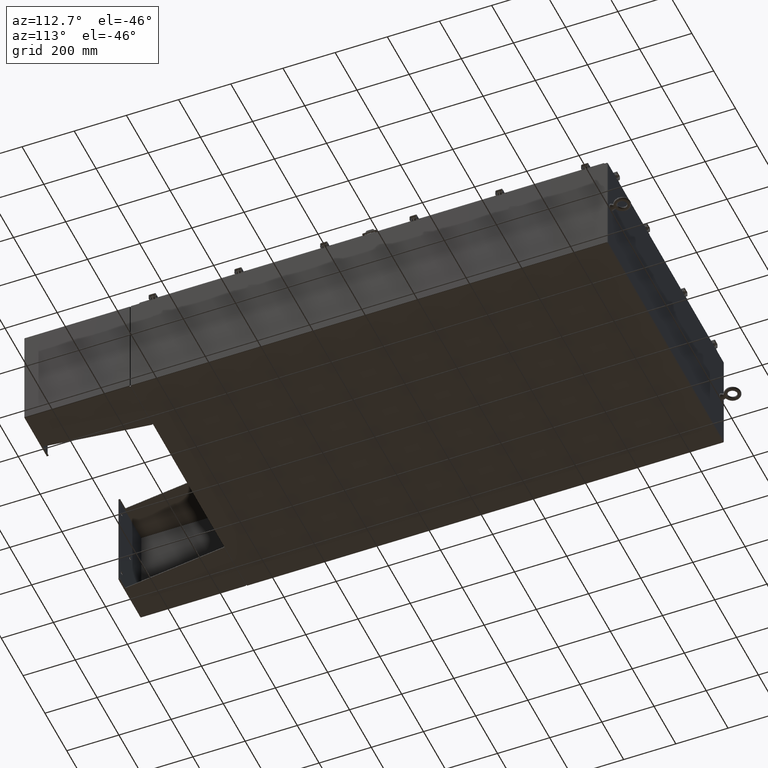
[diagram: clean part render]
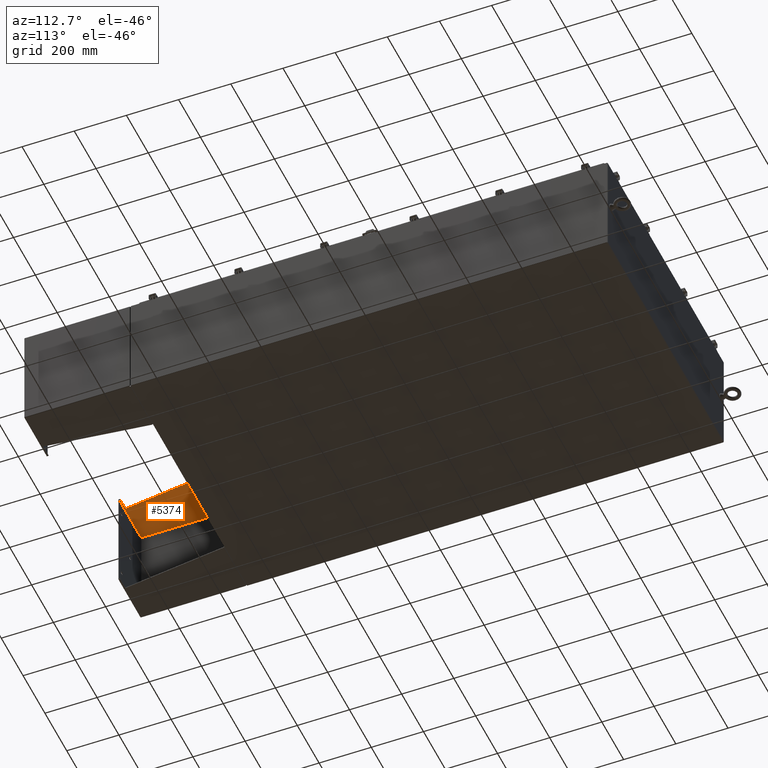
[diagram: same view with one face highlighted and labeled with its STEP entity id]
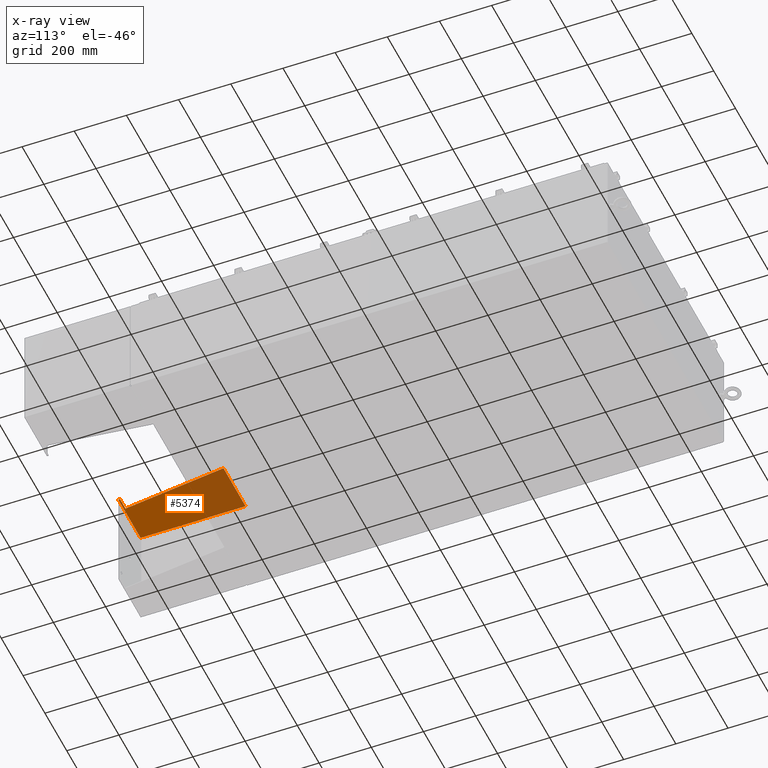
[diagram: x-ray of the same camera — body ghosted, the highlighted face saturated]
A machine part, auxiliary view. The second image highlights one B-rep face of the part: STEP entity #5374.
The next image is the same camera in x-ray: the body ghosted, the highlighted face saturated — about 39% of this face is hidden behind the body in this view.
In plain terms, the highlighted planar face has unit normal (0, 0, -1).
Its self-contained STEP definition (entity closure, byte-faithful):
#2541 = EDGE_CURVE ( 'NONE', #25758, #55545, #8168, .T. ) ;
#2879 = ORIENTED_EDGE ( 'NONE', *, *, #35555, .F. ) ;
#5002 = EDGE_CURVE ( 'NONE', #62351, #36386, #75277, .T. ) ;
#5018 = VECTOR ( 'NONE', #65932, 39.37007874015748100 ) ;
#5374 = ADVANCED_FACE ( 'NONE', ( #33627 ), #19703, .T. ) ;
#5492 = CARTESIAN_POINT ( 'NONE',  ( -7.896000000000027400, 8.000000000000001800, 8.000999999999999400 ) ) ;
#5958 = DIRECTION ( 'NONE',  ( 0.0000000000000000000, 0.0000000000000000000, -1.000000000000000000 ) ) ;
#8168 = LINE ( 'NONE', #18551, #55104 ) ;
#8874 = EDGE_CURVE ( 'NONE', #57874, #25758, #34024, .T. ) ;
#9083 = EDGE_LOOP ( 'NONE', ( #44848, #2879, #12506, #33434, #36473, #23579 ) ) ;
#10622 = VECTOR ( 'NONE', #57680, 39.37007874015748100 ) ;
#12506 = ORIENTED_EDGE ( 'NONE', *, *, #5002, .F. ) ;
#15303 = DIRECTION ( 'NONE',  ( -4.399772607369800400E-016, 0.9922942345449394800, 0.1239038017531047900 ) ) ;
#18141 = CARTESIAN_POINT ( 'NONE',  ( -7.896000000000013200, 7.857000000000001100, 8.000999999999999400 ) ) ;
#18551 = CARTESIAN_POINT ( 'NONE',  ( -7.896000000000013200, 7.857000000000001100, 8.000999999999999400 ) ) ;
#19703 = PLANE ( 'NONE',  #44209 ) ;
#22666 = CARTESIAN_POINT ( 'NONE',  ( -7.896000000000019400, -7.749999999999999100, 6.052216497445928500 ) ) ;
#23413 = CARTESIAN_POINT ( 'NONE',  ( -7.895999999999998100, -7.999999999999999100, 0.03899999999999813300 ) ) ;
#23579 = ORIENTED_EDGE ( 'NONE', *, *, #2541, .F. ) ;
#25289 = VERTEX_POINT ( 'NONE', #23413 ) ;
#25758 = VERTEX_POINT ( 'NONE', #18141 ) ;
#27692 = EDGE_CURVE ( 'NONE', #55545, #25289, #60570, .T. ) ;
#33434 = ORIENTED_EDGE ( 'NONE', *, *, #34089, .F. ) ;
#33627 = FACE_OUTER_BOUND ( 'NONE', #9083, .T. ) ;
#34024 = LINE ( 'NONE', #60249, #63372 ) ;
#34089 = EDGE_CURVE ( 'NONE', #25289, #62351, #59393, .T. ) ;
#35555 = EDGE_CURVE ( 'NONE', #36386, #57874, #50224, .T. ) ;
#36386 = VERTEX_POINT ( 'NONE', #53738 ) ;
#36473 = ORIENTED_EDGE ( 'NONE', *, *, #27692, .F. ) ;
#44209 = AXIS2_PLACEMENT_3D ( 'NONE', #5492, #66723, #63759 ) ;
#44848 = ORIENTED_EDGE ( 'NONE', *, *, #8874, .F. ) ;
#45026 = VECTOR ( 'NONE', #59383, 39.37007874015748100 ) ;
#46676 = DIRECTION ( 'NONE',  ( -0.0000000000000000000, 1.000000000000000000, -0.0000000000000000000 ) ) ;
#47653 = CARTESIAN_POINT ( 'NONE',  ( -7.895999999999999000, 8.000000000000001800, 0.03900000000000031900 ) ) ;
#48425 = CARTESIAN_POINT ( 'NONE',  ( -7.896000000000027400, -7.749999999999999100, 8.001000000000006600 ) ) ;
#50224 = LINE ( 'NONE', #48425, #5018 ) ;
#53738 = CARTESIAN_POINT ( 'NONE',  ( -7.896000000000027400, -7.749999999999999100, 8.001000000000006600 ) ) ;
#55104 = VECTOR ( 'NONE', #5958, 39.37007874015748100 ) ;
#55545 = VERTEX_POINT ( 'NONE', #72778 ) ;
#57448 = VECTOR ( 'NONE', #46676, 39.37007874015748100 ) ;
#57680 = DIRECTION ( 'NONE',  ( -3.550958521948298200E-015, -0.0000000000000000000, 1.000000000000000000 ) ) ;
#57874 = VERTEX_POINT ( 'NONE', #22666 ) ;
#59383 = DIRECTION ( 'NONE',  ( 0.0000000000000000000, -1.000000000000000000, 0.0000000000000000000 ) ) ;
#59393 = LINE ( 'NONE', #63689, #10622 ) ;
#60249 = CARTESIAN_POINT ( 'NONE',  ( -7.896000000000019400, -7.749999999999999100, 6.052216497445928500 ) ) ;
#60570 = LINE ( 'NONE', #47653, #45026 ) ;
#62351 = VERTEX_POINT ( 'NONE', #69854 ) ;
#63372 = VECTOR ( 'NONE', #15303, 39.37007874015748100 ) ;
#63689 = CARTESIAN_POINT ( 'NONE',  ( -7.896000000000027400, -7.999999999999999100, 8.000999999999999400 ) ) ;
#63759 = DIRECTION ( 'NONE',  ( 3.550958521948298200E-015, 0.0000000000000000000, -1.000000000000000000 ) ) ;
#65932 = DIRECTION ( 'NONE',  ( 3.550958521948298200E-015, 0.0000000000000000000, -1.000000000000000000 ) ) ;
#66723 = DIRECTION ( 'NONE',  ( 1.000000000000000000, 0.0000000000000000000, 3.550958521948298200E-015 ) ) ;
#69854 = CARTESIAN_POINT ( 'NONE',  ( -7.896000000000027400, -7.999999999999999100, 8.000999999999999400 ) ) ;
#72338 = CARTESIAN_POINT ( 'NONE',  ( -7.896000000000027400, 8.000000000000001800, 8.000999999999999400 ) ) ;
#72778 = CARTESIAN_POINT ( 'NONE',  ( -7.895999999999998100, 7.857000000000002000, 0.03900000000000031900 ) ) ;
#75277 = LINE ( 'NONE', #72338, #57448 ) ;